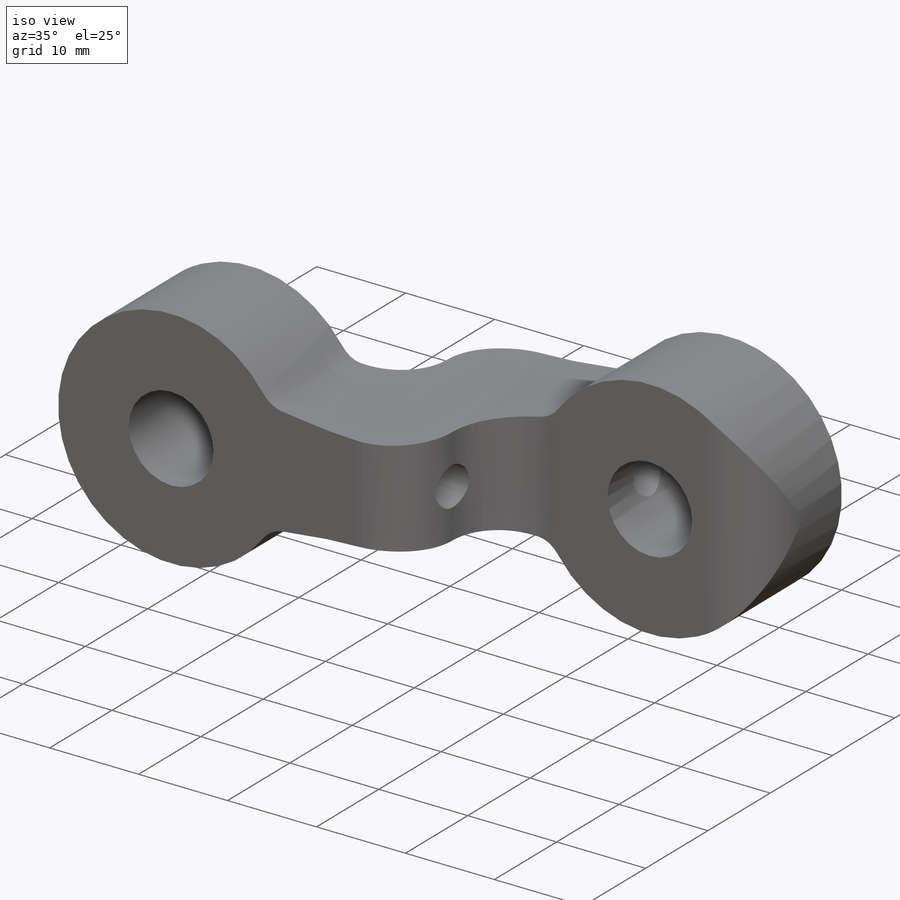
[diagram: iso view]
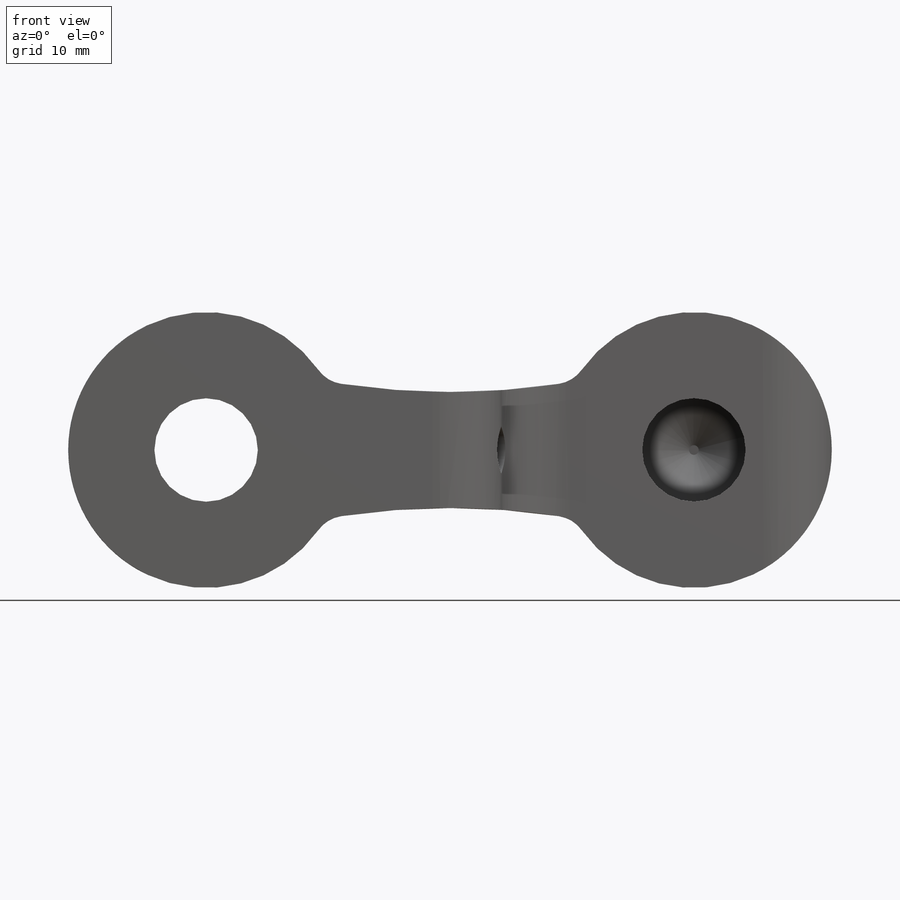
[diagram: front view]
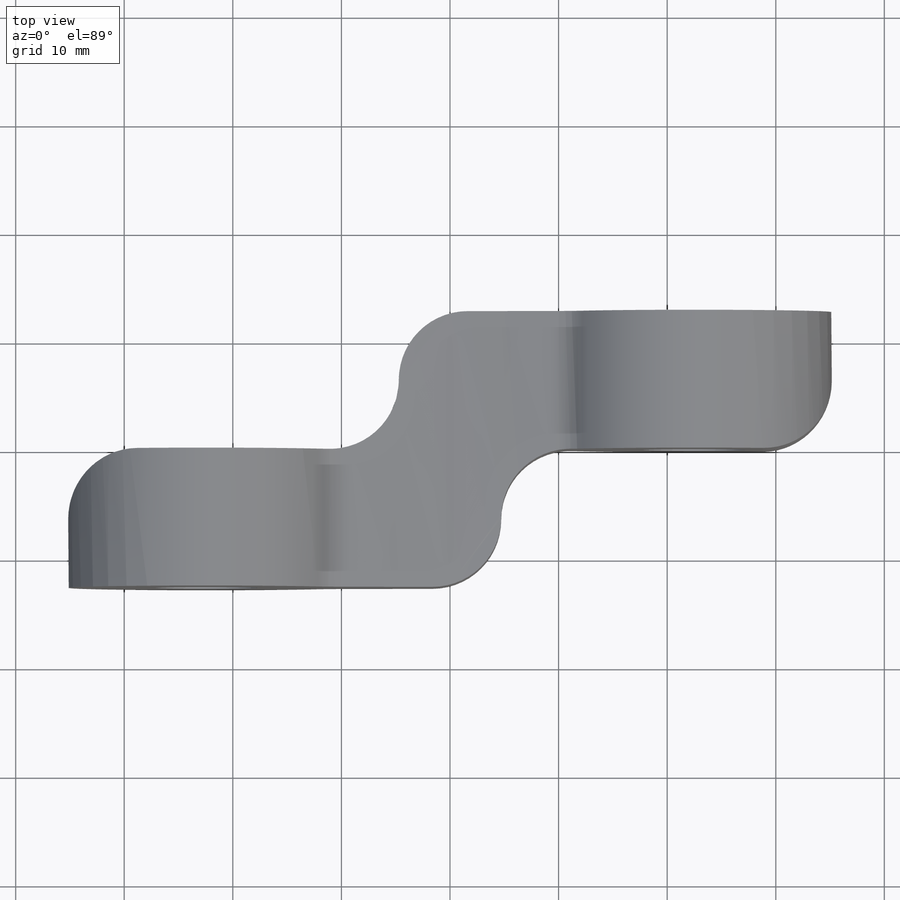
[diagram: top view]
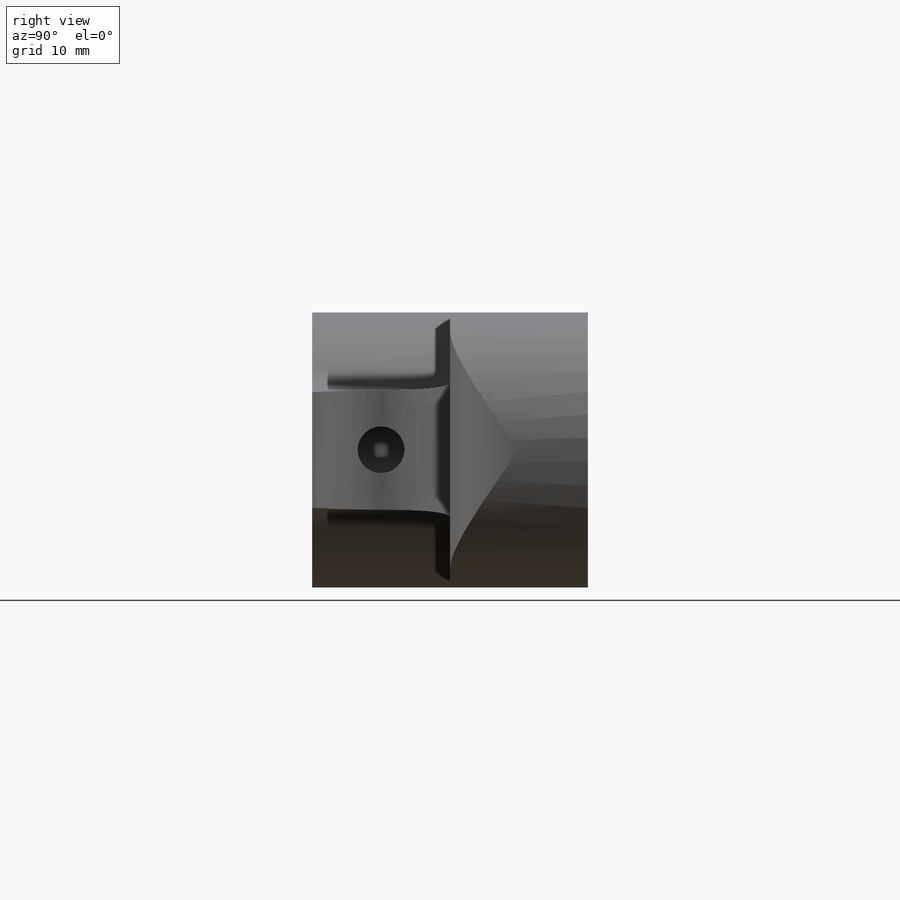
[diagram: right view]
SOLIDWORKS PART (.sldprt)
format: sldprt  version: not decoded by parser v0  size: 617,984 bytes
history: native  units: mm
features: sketch x10, cut_extrude x6, extrude x2, material x1, plane x1, chamfer x1, pattern_circular x1, fillet x1 (+13 scaffold rows collapsed)
feature tree (36):
  scaffold x13  (default folders/planes/origin — collapsed)
  material  "PE High Density"
  sketch  "Sketch1"  dims[D1=25.4mm D2=44.9199mm]
  sketch  "Sketch2"
  extrude  "Extrude1"  Depth=25.4mm
  sketch  "Sketch4"  dims[D1=9.525mm]
  cut_extrude  "Cut-Extrude2"  Depth=24.13mm
  sketch  "Sketch20"  dims[D1=6.35mm]
  cut_extrude  "Cut-Extrude8"  Depth=27.94mm
  sketch  "Sketch26"  dims[c1.D1=6.35mm c1.D3=6.35mm c1.D4=6.35mm c2.D1=30.1625mm c2.D2=12.7mm c2.D5=41.275mm c2.D6=~24.092026mm]
  cut_extrude  "Cut-Extrude9"  Depth=27.94mm
  plane  "Plane1"  Offset=22.225mm
  sketch  "Sketch29"  dims[D1=4.318mm]
  cut_extrude  "Cut-Extrude10"  [1 undecoded]
  chamfer  "Chamfer1"  Distance=2.54mm
  pattern_circular  "CirPattern2"  Count=2 Angle=360deg
  sketch  "Sketch11"  dims[D1=127.0mm]
  sketch  "Sketch13"  dims[D1=~133.210621mm D2=134.9375mm]
  cut_extrude  "Cut-Extrude5"  Depth=27.14625mm
  fillet  "Fillet3"  Radius=3.175mm
  sketch  "Sketch28"
  extrude  "Extrude2"  [1 undecoded]
  sketch  "Sketch32"
  cut_extrude  "Cut-Extrude12"  [1 undecoded]
decode coverage: 15 of 21 modeling features carry decoded parameters
note: ~ marks probable driven/reference dimensions
note: 3 parameter values undecoded
summary: no parameter record found for 3 features
note: suppression state not decoded; provenance and decode notes live in map.json
